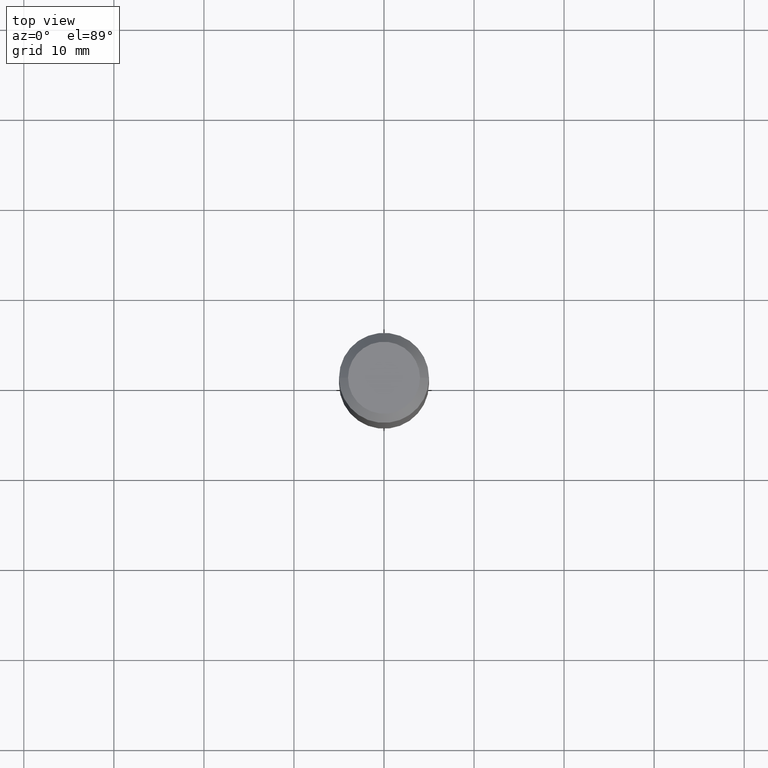
[diagram: clean part render]
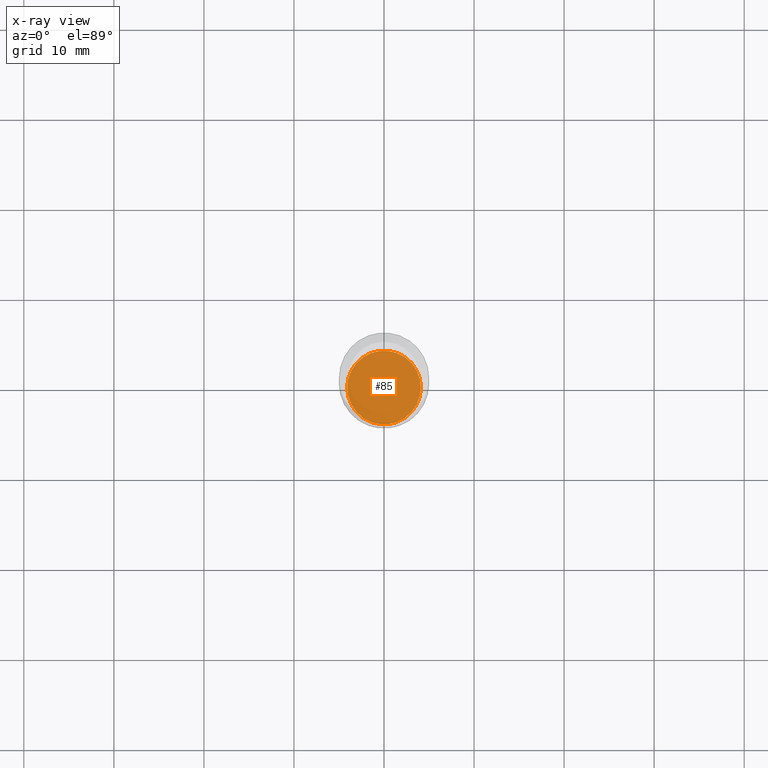
[diagram: x-ray — body ghosted, one internal face saturated and labeled with its STEP entity id]
A machine part, top view, then the same camera in x-ray: the body is ghosted and one INTERNAL B-rep face — a face not visible from any outside direction — is saturated and labeled: STEP entity #85.
In plain terms, the highlighted planar face has unit normal (-0, 0, 1).
Its self-contained STEP definition (entity closure, byte-faithful):
#31 = CIRCLE ( 'NONE', #116, 0.1608999999999999875 ) ;
#44 = CARTESIAN_POINT ( 'NONE',  ( 6.066229920622851108E-29, -8.660968609134307449E-15, -2.480600000000000360 ) ) ;
#72 = CARTESIAN_POINT ( 'NONE',  ( -0.1608999999999999875, -7.515056120122195532E-15, -2.480600000000000360 ) ) ;
#85 = ADVANCED_FACE ( 'NONE', ( #318 ), #279, .F. ) ;
#95 = ORIENTED_EDGE ( 'NONE', *, *, #393, .F. ) ;
#116 = AXIS2_PLACEMENT_3D ( 'NONE', #44, #414, #373 ) ;
#117 = DIRECTION ( 'NONE',  ( 1.000000000000000000, -6.982962677686265922E-15, 4.876176775795935793E-29 ) ) ;
#129 = AXIS2_PLACEMENT_3D ( 'NONE', #282, #239, #444 ) ;
#186 = EDGE_CURVE ( 'NONE', #251, #249, #423, .T. ) ;
#190 = ORIENTED_EDGE ( 'NONE', *, *, #186, .F. ) ;
#239 = DIRECTION ( 'NONE',  ( -2.445468806185136597E-29, 3.491481338843145583E-15, 1.000000000000000000 ) ) ;
#249 = VERTEX_POINT ( 'NONE', #72 ) ;
#251 = VERTEX_POINT ( 'NONE', #398 ) ;
#279 = PLANE ( 'NONE',  #296 ) ;
#282 = CARTESIAN_POINT ( 'NONE',  ( 6.066229920622851108E-29, -8.660968609134307449E-15, -2.480600000000000360 ) ) ;
#296 = AXIS2_PLACEMENT_3D ( 'NONE', #359, #399, #117 ) ;
#318 = FACE_OUTER_BOUND ( 'NONE', #460, .T. ) ;
#359 = CARTESIAN_POINT ( 'NONE',  ( 6.066229920622851108E-29, -8.660968609134307449E-15, -2.480600000000000360 ) ) ;
#373 = DIRECTION ( 'NONE',  ( 1.000000000000000000, -6.982962677686262766E-15, 0.000000000000000000 ) ) ;
#393 = EDGE_CURVE ( 'NONE', #249, #251, #31, .T. ) ;
#398 = CARTESIAN_POINT ( 'NONE',  ( 0.1608999999999999875, -9.784527303974028166E-15, -2.480600000000000360 ) ) ;
#399 = DIRECTION ( 'NONE',  ( -2.438088387897960049E-29, 3.491481338843145188E-15, 1.000000000000000000 ) ) ;
#414 = DIRECTION ( 'NONE',  ( -2.445468806185136597E-29, 3.491481338843145583E-15, 1.000000000000000000 ) ) ;
#423 = CIRCLE ( 'NONE', #129, 0.1608999999999999875 ) ;
#444 = DIRECTION ( 'NONE',  ( 1.000000000000000000, -6.982962677686262766E-15, 0.000000000000000000 ) ) ;
#460 = EDGE_LOOP ( 'NONE', ( #190, #95 ) ) ;